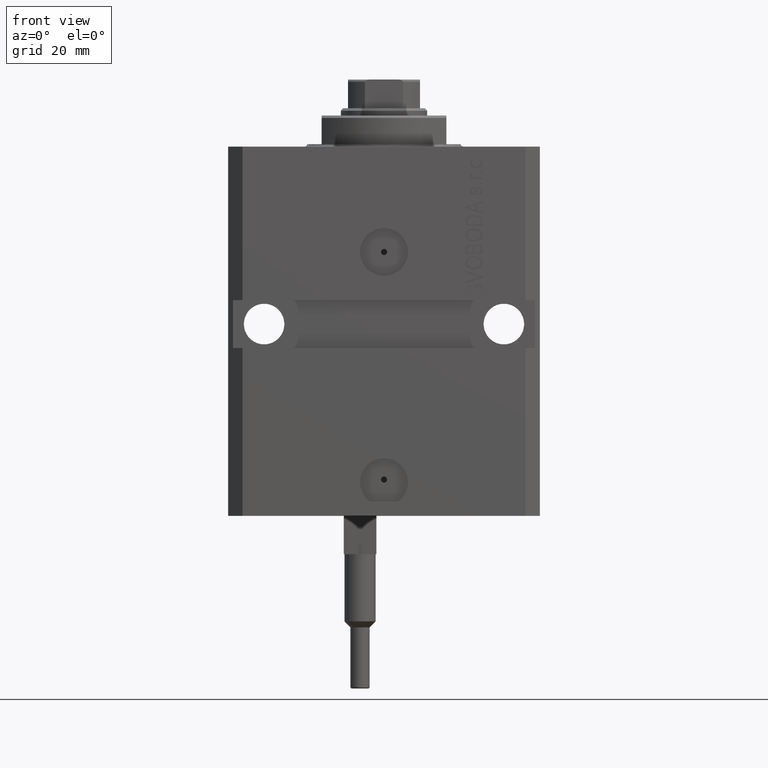
[diagram: clean part render]
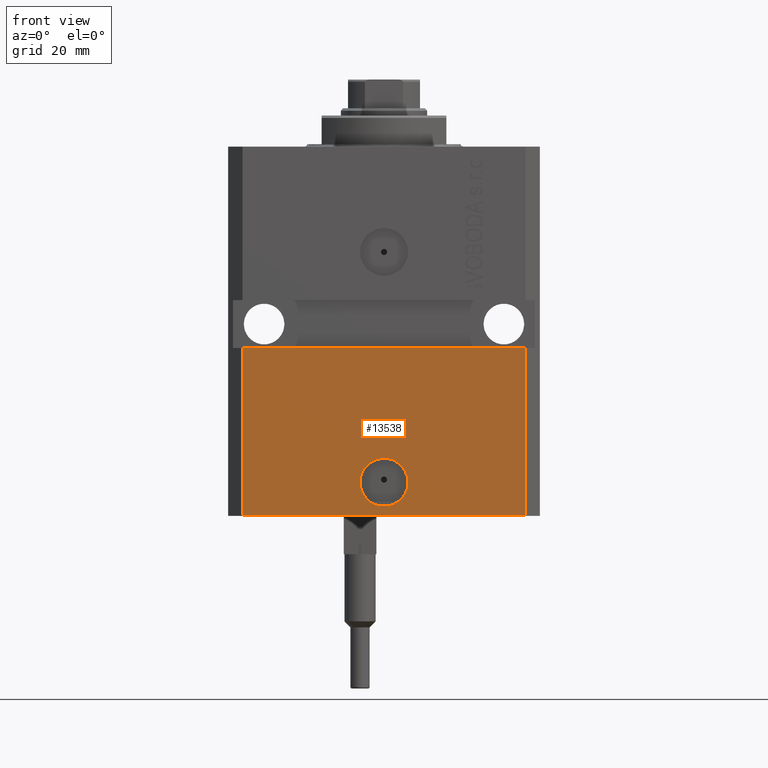
[diagram: same view with one face highlighted and labeled with its STEP entity id]
A machine part, front view. The second image highlights one B-rep face of the part: STEP entity #13538.
In plain terms, the highlighted planar face has unit normal (0, -1, 0).
Its self-contained STEP definition (entity closure, byte-faithful):
#1362 = AXIS2_PLACEMENT_3D ( 'NONE', #9698, #8988, #46332 ) ;
#1767 = DIRECTION ( 'NONE',  ( 1.176083712526788232E-16, -1.000000000000000000, 0.000000000000000000 ) ) ;
#2194 = ORIENTED_EDGE ( 'NONE', *, *, #35089, .T. ) ;
#3425 = DIRECTION ( 'NONE',  ( 1.000000000000000000, 1.067522139062765303E-16, 1.067522139062765303E-16 ) ) ;
#4637 = CIRCLE ( 'NONE', #37143, 5.000000000000005329 ) ;
#4700 = VERTEX_POINT ( 'NONE', #41437 ) ;
#4758 = CARTESIAN_POINT ( 'NONE',  ( -29.49999999999650413, -22.49999999999949907, -77.00000000000000000 ) ) ;
#5161 = EDGE_CURVE ( 'NONE', #40338, #4700, #4637, .T. ) ;
#6938 = CARTESIAN_POINT ( 'NONE',  ( -29.49999999999650413, -22.49999999999949907, -77.00000000000000000 ) ) ;
#7161 = DIRECTION ( 'NONE',  ( 1.000000000000000000, 0.000000000000000000, 0.000000000000000000 ) ) ;
#8661 = CARTESIAN_POINT ( 'NONE',  ( 5.000000000000007994, -22.49999999999949551, -69.99999999999998579 ) ) ;
#8988 = DIRECTION ( 'NONE',  ( 1.176083712526788232E-16, -1.000000000000000000, 0.000000000000000000 ) ) ;
#9430 = VECTOR ( 'NONE', #3425, 1000.000000000000000 ) ;
#9581 = ORIENTED_EDGE ( 'NONE', *, *, #5161, .F. ) ;
#9698 = CARTESIAN_POINT ( 'NONE',  ( -29.49999999999650413, -22.49999999999949907, -77.00000000000000000 ) ) ;
#10139 = DIRECTION ( 'NONE',  ( 0.000000000000000000, 0.000000000000000000, 1.000000000000000000 ) ) ;
#10613 = CARTESIAN_POINT ( 'NONE',  ( -29.49999999999650413, -22.49999999999949907, -77.00000000000000000 ) ) ;
#11534 = EDGE_CURVE ( 'NONE', #4700, #40338, #26039, .T. ) ;
#13538 = ADVANCED_FACE ( 'NONE', ( #34913, #21098 ), #20382, .T. ) ;
#14656 = VECTOR ( 'NONE', #29495, 1000.000000000000000 ) ;
#17414 = LINE ( 'NONE', #10613, #39631 ) ;
#18187 = ORIENTED_EDGE ( 'NONE', *, *, #40039, .F. ) ;
#19059 = CARTESIAN_POINT ( 'NONE',  ( 29.49999999999650413, -22.49999999999949196, -77.00000000000000000 ) ) ;
#19061 = DIRECTION ( 'NONE',  ( 1.000000000000000000, 1.176083712526788232E-16, 0.000000000000000000 ) ) ;
#20174 = EDGE_LOOP ( 'NONE', ( #18187, #38817, #37344, #2194 ) ) ;
#20382 = PLANE ( 'NONE',  #1362 ) ;
#21098 = FACE_OUTER_BOUND ( 'NONE', #20174, .T. ) ;
#21460 = VERTEX_POINT ( 'NONE', #43891 ) ;
#21986 = EDGE_CURVE ( 'NONE', #22732, #43437, #37474, .T. ) ;
#22732 = VERTEX_POINT ( 'NONE', #6938 ) ;
#25712 = CARTESIAN_POINT ( 'NONE',  ( -32.49999999999650413, -22.49999999999949907, -41.99999999999999289 ) ) ;
#26039 = CIRCLE ( 'NONE', #47741, 5.000000000000005329 ) ;
#28824 = EDGE_CURVE ( 'NONE', #22732, #21460, #17414, .T. ) ;
#28930 = EDGE_LOOP ( 'NONE', ( #9581, #47568 ) ) ;
#29217 = CARTESIAN_POINT ( 'NONE',  ( 2.646188353185214061E-15, -22.49999999999949551, -69.99999999999998579 ) ) ;
#29495 = DIRECTION ( 'NONE',  ( 0.000000000000000000, 0.000000000000000000, 1.000000000000000000 ) ) ;
#34913 = FACE_BOUND ( 'NONE', #28930, .T. ) ;
#34958 = CARTESIAN_POINT ( 'NONE',  ( 2.646188353185214061E-15, -22.49999999999949551, -69.99999999999998579 ) ) ;
#35089 = EDGE_CURVE ( 'NONE', #43437, #43310, #41123, .T. ) ;
#35125 = CARTESIAN_POINT ( 'NONE',  ( 29.49999999999650058, -22.49999999999949196, -41.99999999999998579 ) ) ;
#36609 = LINE ( 'NONE', #25712, #9430 ) ;
#37143 = AXIS2_PLACEMENT_3D ( 'NONE', #29217, #40366, #7161 ) ;
#37265 = CARTESIAN_POINT ( 'NONE',  ( 29.49999999999650413, -22.49999999999949196, -77.00000000000000000 ) ) ;
#37344 = ORIENTED_EDGE ( 'NONE', *, *, #21986, .T. ) ;
#37474 = LINE ( 'NONE', #4758, #43338 ) ;
#38594 = DIRECTION ( 'NONE',  ( 1.000000000000000000, 0.000000000000000000, 0.000000000000000000 ) ) ;
#38817 = ORIENTED_EDGE ( 'NONE', *, *, #28824, .F. ) ;
#39631 = VECTOR ( 'NONE', #10139, 1000.000000000000000 ) ;
#40039 = EDGE_CURVE ( 'NONE', #21460, #43310, #36609, .T. ) ;
#40338 = VERTEX_POINT ( 'NONE', #8661 ) ;
#40366 = DIRECTION ( 'NONE',  ( 1.176083712526788232E-16, -1.000000000000000000, 0.000000000000000000 ) ) ;
#41123 = LINE ( 'NONE', #19059, #14656 ) ;
#41437 = CARTESIAN_POINT ( 'NONE',  ( -5.000000000000002665, -22.49999999999949551, -69.99999999999998579 ) ) ;
#43310 = VERTEX_POINT ( 'NONE', #35125 ) ;
#43338 = VECTOR ( 'NONE', #19061, 1000.000000000000000 ) ;
#43437 = VERTEX_POINT ( 'NONE', #37265 ) ;
#43891 = CARTESIAN_POINT ( 'NONE',  ( -29.49999999999650413, -22.49999999999949907, -41.99999999999999289 ) ) ;
#46332 = DIRECTION ( 'NONE',  ( 1.000000000000000000, 1.176083712526788232E-16, 0.000000000000000000 ) ) ;
#47568 = ORIENTED_EDGE ( 'NONE', *, *, #11534, .F. ) ;
#47741 = AXIS2_PLACEMENT_3D ( 'NONE', #34958, #1767, #38594 ) ;